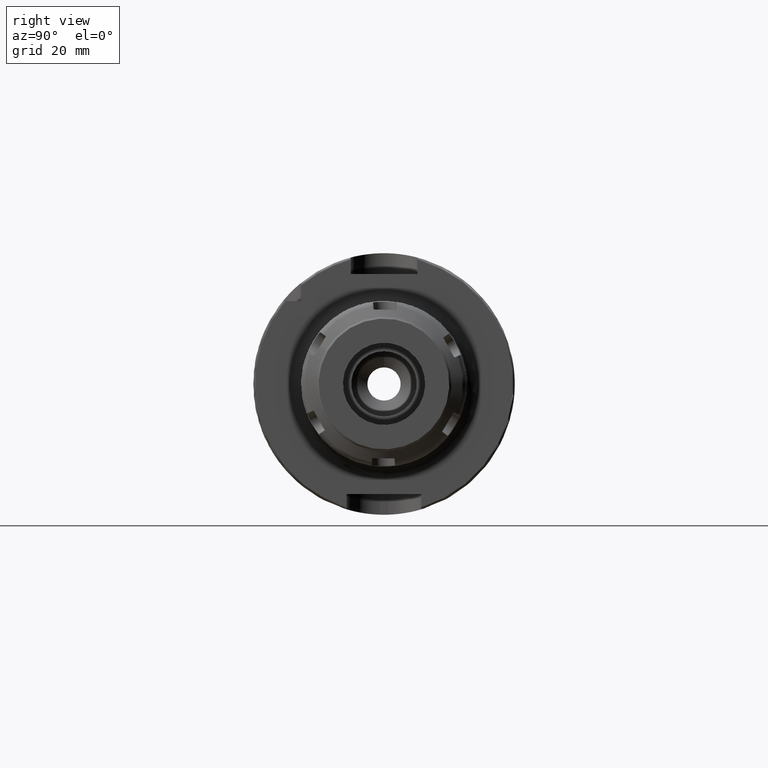
[diagram: clean part render]
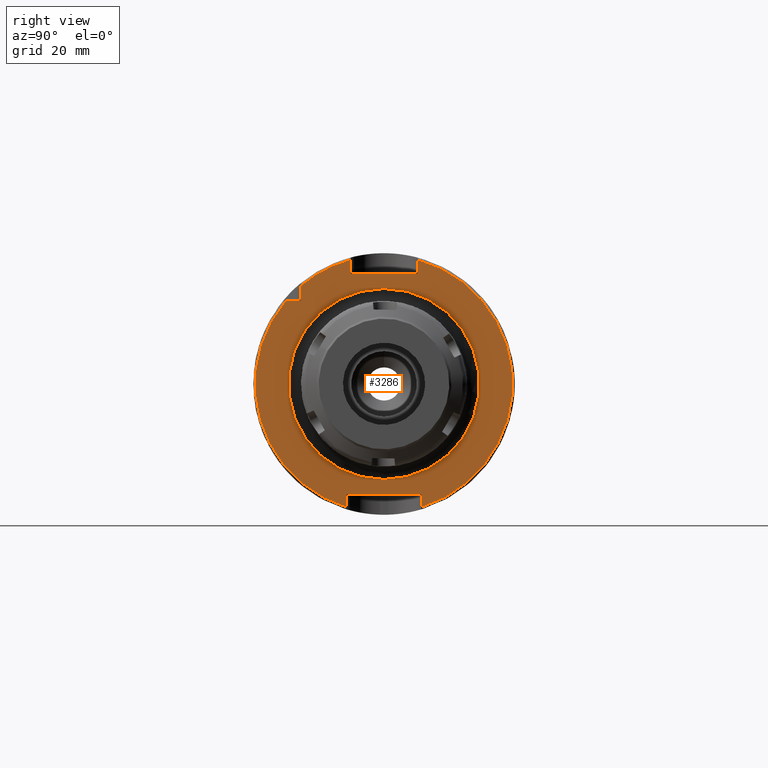
[diagram: same view with one face highlighted and labeled with its STEP entity id]
A machine part, right view. The second image highlights one B-rep face of the part: STEP entity #3286.
In plain terms, the highlighted planar face has unit normal (1, 0, 0).
Its self-contained STEP definition (entity closure, byte-faithful):
#148=FACE_BOUND('',#520,.T.);
#162=PLANE('',#3575);
#325=FACE_OUTER_BOUND('',#519,.T.);
#519=EDGE_LOOP('',(#2255,#2256,#2257,#2258,#2259,#2260,#2261,#2262,#2263,
#2264,#2265));
#520=EDGE_LOOP('',(#2266));
#719=LINE('',#5062,#925);
#720=LINE('',#5066,#926);
#721=LINE('',#5068,#927);
#722=LINE('',#5070,#928);
#723=LINE('',#5074,#929);
#724=LINE('',#5076,#930);
#725=LINE('',#5078,#931);
#726=LINE('',#5081,#932);
#925=VECTOR('',#4046,10.);
#926=VECTOR('',#4049,10.);
#927=VECTOR('',#4050,10.);
#928=VECTOR('',#4051,10.);
#929=VECTOR('',#4054,10.);
#930=VECTOR('',#4055,10.);
#931=VECTOR('',#4056,10.);
#932=VECTOR('',#4059,10.);
#1152=CIRCLE('',#3574,23.);
#1153=CIRCLE('',#3576,31.);
#1154=CIRCLE('',#3577,31.);
#1155=CIRCLE('',#3578,31.);
#1346=VERTEX_POINT('',#5056);
#1347=VERTEX_POINT('',#5060);
#1348=VERTEX_POINT('',#5061);
#1349=VERTEX_POINT('',#5063);
#1350=VERTEX_POINT('',#5065);
#1351=VERTEX_POINT('',#5067);
#1352=VERTEX_POINT('',#5069);
#1353=VERTEX_POINT('',#5071);
#1354=VERTEX_POINT('',#5073);
#1355=VERTEX_POINT('',#5075);
#1356=VERTEX_POINT('',#5077);
#1357=VERTEX_POINT('',#5079);
#1699=EDGE_CURVE('',#1346,#1346,#1152,.T.);
#1700=EDGE_CURVE('',#1347,#1348,#719,.T.);
#1701=EDGE_CURVE('',#1348,#1349,#1153,.T.);
#1702=EDGE_CURVE('',#1349,#1350,#720,.T.);
#1703=EDGE_CURVE('',#1350,#1351,#721,.T.);
#1704=EDGE_CURVE('',#1351,#1352,#722,.T.);
#1705=EDGE_CURVE('',#1352,#1353,#1154,.T.);
#1706=EDGE_CURVE('',#1353,#1354,#723,.T.);
#1707=EDGE_CURVE('',#1354,#1355,#724,.T.);
#1708=EDGE_CURVE('',#1355,#1356,#725,.T.);
#1709=EDGE_CURVE('',#1356,#1357,#1155,.T.);
#1710=EDGE_CURVE('',#1357,#1347,#726,.T.);
#2255=ORIENTED_EDGE('',*,*,#1700,.T.);
#2256=ORIENTED_EDGE('',*,*,#1701,.T.);
#2257=ORIENTED_EDGE('',*,*,#1702,.T.);
#2258=ORIENTED_EDGE('',*,*,#1703,.T.);
#2259=ORIENTED_EDGE('',*,*,#1704,.T.);
#2260=ORIENTED_EDGE('',*,*,#1705,.T.);
#2261=ORIENTED_EDGE('',*,*,#1706,.T.);
#2262=ORIENTED_EDGE('',*,*,#1707,.T.);
#2263=ORIENTED_EDGE('',*,*,#1708,.T.);
#2264=ORIENTED_EDGE('',*,*,#1709,.T.);
#2265=ORIENTED_EDGE('',*,*,#1710,.T.);
#2266=ORIENTED_EDGE('',*,*,#1699,.F.);
#3286=ADVANCED_FACE('',(#325,#148),#162,.T.);
#3574=AXIS2_PLACEMENT_3D('',#5058,#4042,#4043);
#3575=AXIS2_PLACEMENT_3D('',#5059,#4044,#4045);
#3576=AXIS2_PLACEMENT_3D('',#5064,#4047,#4048);
#3577=AXIS2_PLACEMENT_3D('',#5072,#4052,#4053);
#3578=AXIS2_PLACEMENT_3D('',#5080,#4057,#4058);
#4042=DIRECTION('center_axis',(1.,0.,0.));
#4043=DIRECTION('ref_axis',(0.,-1.,-1.22464679914735E-16));
#4044=DIRECTION('center_axis',(1.,0.,0.));
#4045=DIRECTION('ref_axis',(0.,0.,-1.));
#4046=DIRECTION('',(0.,-1.,0.));
#4047=DIRECTION('center_axis',(1.,0.,0.));
#4048=DIRECTION('ref_axis',(0.,0.,-1.));
#4049=DIRECTION('',(0.,0.,1.));
#4050=DIRECTION('',(0.,1.,0.));
#4051=DIRECTION('',(0.,0.,-1.));
#4052=DIRECTION('center_axis',(1.,0.,0.));
#4053=DIRECTION('ref_axis',(0.,0.,-1.));
#4054=DIRECTION('',(0.,0.,-1.));
#4055=DIRECTION('',(0.,-1.,0.));
#4056=DIRECTION('',(0.,0.,1.));
#4057=DIRECTION('center_axis',(1.,0.,0.));
#4058=DIRECTION('ref_axis',(0.,0.,-1.));
#4059=DIRECTION('',(0.,0.,-1.));
#5056=CARTESIAN_POINT('',(26.,-2.81668763803891E-15,-23.));
#5058=CARTESIAN_POINT('Origin',(26.,0.,0.));
#5059=CARTESIAN_POINT('Origin',(26.,0.,0.));
#5060=CARTESIAN_POINT('',(26.,-20.,20.));
#5061=CARTESIAN_POINT('',(26.,-23.685438564654,20.));
#5062=CARTESIAN_POINT('',(26.,-12.,20.));
#5063=CARTESIAN_POINT('',(26.,-9.,-29.6647939483827));
#5064=CARTESIAN_POINT('Origin',(26.,0.,0.));
#5065=CARTESIAN_POINT('',(26.,-9.,-26.5));
#5066=CARTESIAN_POINT('',(26.,-9.,-13.25));
#5067=CARTESIAN_POINT('',(26.,9.,-26.5));
#5068=CARTESIAN_POINT('',(26.,1.94289029309402E-15,-26.5));
#5069=CARTESIAN_POINT('',(26.,9.,-29.6647939483827));
#5070=CARTESIAN_POINT('',(26.,9.,-13.25));
#5071=CARTESIAN_POINT('',(26.,8.,29.9499582637439));
#5072=CARTESIAN_POINT('Origin',(26.,0.,0.));
#5073=CARTESIAN_POINT('',(26.,8.,26.5));
#5074=CARTESIAN_POINT('',(26.,8.,13.25));
#5075=CARTESIAN_POINT('',(26.,-8.,26.5));
#5076=CARTESIAN_POINT('',(26.,5.55111512312578E-16,26.5));
#5077=CARTESIAN_POINT('',(26.,-8.,29.9499582637439));
#5078=CARTESIAN_POINT('',(26.,-8.,13.25));
#5079=CARTESIAN_POINT('',(26.,-20.,23.685438564654));
#5080=CARTESIAN_POINT('Origin',(26.,0.,0.));
#5081=CARTESIAN_POINT('',(26.,-20.,10.));